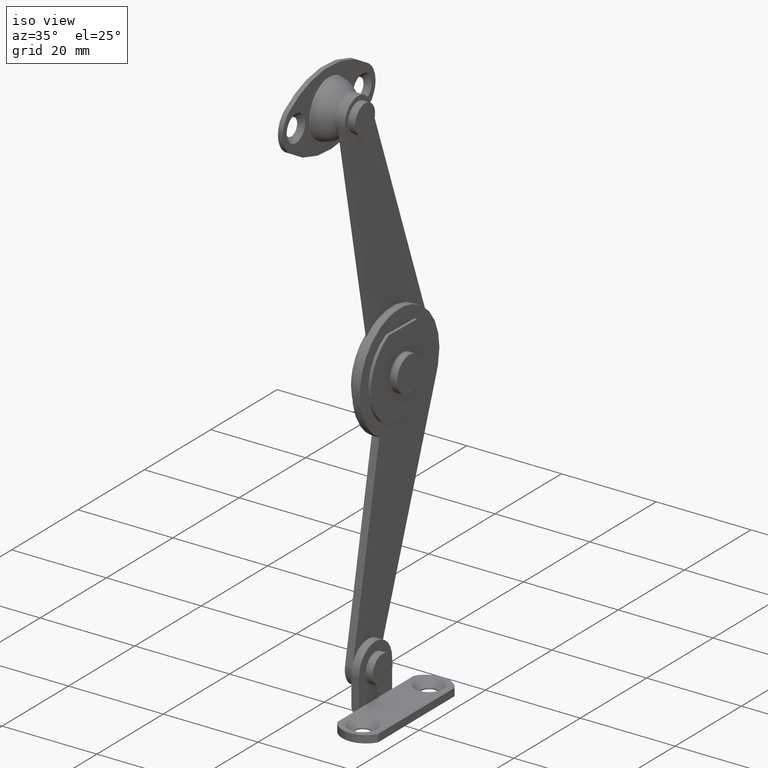
[diagram: clean part render]
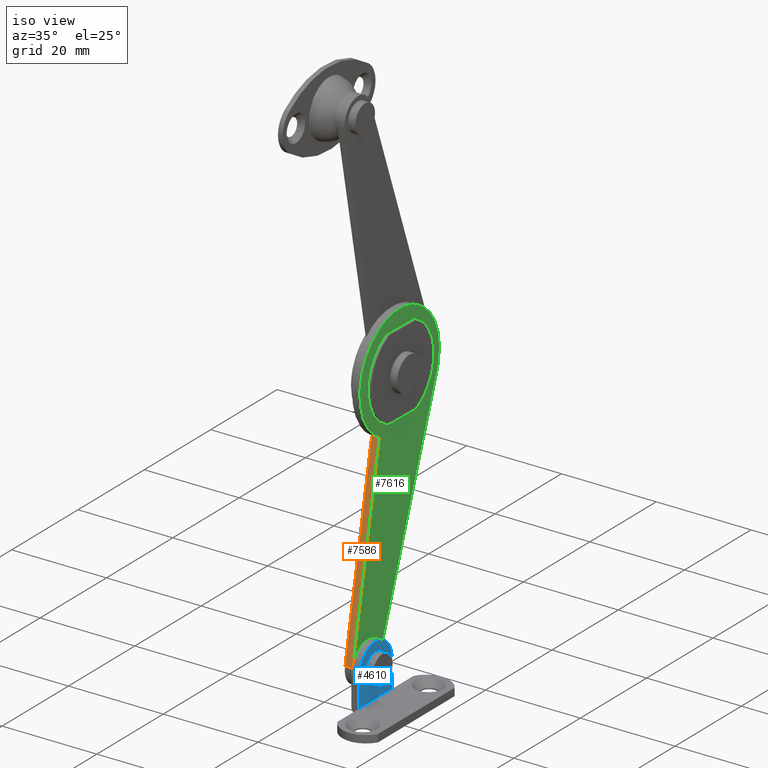
[diagram: same view with three faces highlighted in distinct colors, each labeled with its STEP entity id]
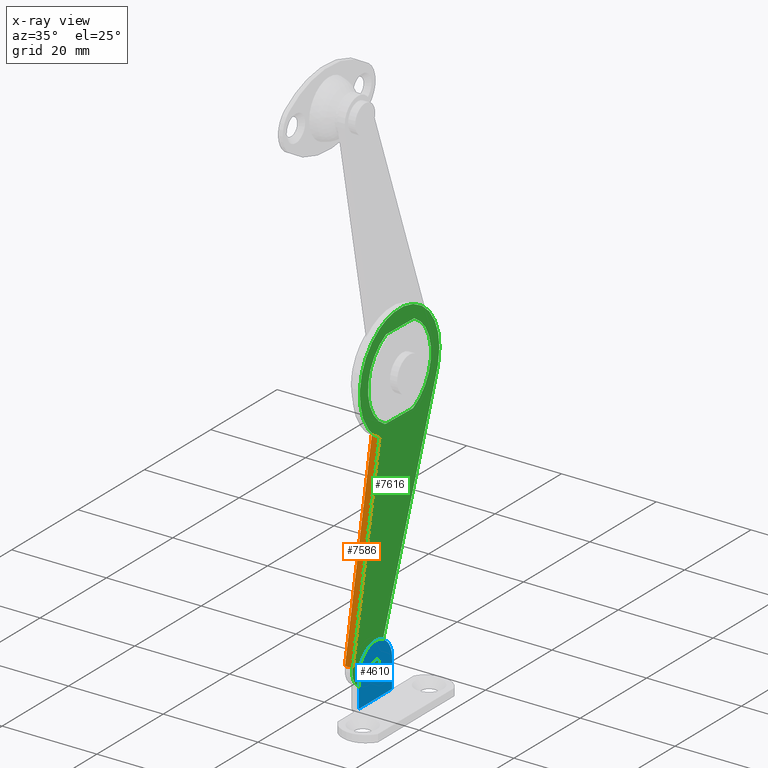
[diagram: x-ray of the same camera — body ghosted, the three highlighted faces saturated]
A machine part, iso view with three faces highlighted in distinct colors.
The next image is the same camera in x-ray (body ghosted, the three faces saturated) — at least one of them is partly hidden behind the body in this view.
Their STEP definitions:

[orange] entity #7586 — the highlighted face is a freeform B-spline surface patch.
#6938=CARTESIAN_POINT('',(7.099998474121129,-3.924537018917785,-51.226640025646198));
#6939=VERTEX_POINT('',#6938);
#6952=CARTESIAN_POINT('',(7.099998474121129,4.135061934568050,-10.326884327893060));
#6953=VERTEX_POINT('',#6952);
#6954=CARTESIAN_POINT('',(7.099998474121129,4.135061934568050,-10.326884327893060));
#6955=CARTESIAN_POINT('',(7.099998474121129,-3.924537018917785,-51.226640025646198));
#6956=QUASI_UNIFORM_CURVE('',1,(#6954,#6955),.UNSPECIFIED.,.F.,.U.);
#6957=EDGE_CURVE('',#6953,#6939,#6956,.T.);
#7379=CARTESIAN_POINT('',(8.699998474121170,4.135061934568050,-10.326884327893060));
#7380=VERTEX_POINT('',#7379);
#7428=CARTESIAN_POINT('',(7.099998474121129,4.135061934568050,-10.326884327893060));
#7429=CARTESIAN_POINT('',(8.699998474121170,4.135061934568050,-10.326884327893060));
#7430=QUASI_UNIFORM_CURVE('',1,(#7428,#7429),.UNSPECIFIED.,.F.,.U.);
#7431=EDGE_CURVE('',#6953,#7380,#7430,.T.);
#7546=CARTESIAN_POINT('',(8.699998474121170,-3.924537018917785,-51.226640025646198));
#7547=VERTEX_POINT('',#7546);
#7560=CARTESIAN_POINT('',(7.099998474121129,-3.924537018917785,-51.226640025646198));
#7561=CARTESIAN_POINT('',(8.699998474121170,-3.924537018917785,-51.226640025646198));
#7562=QUASI_UNIFORM_CURVE('',1,(#7560,#7561),.UNSPECIFIED.,.F.,.U.);
#7563=EDGE_CURVE('',#6939,#7547,#7562,.T.);
#7571=CARTESIAN_POINT('',(7.020078460073266,4.537643469414697,-8.283942664922277));
#7572=CARTESIAN_POINT('',(7.020078460073266,-4.327113801324200,-53.269580725761138));
#7573=CARTESIAN_POINT('',(8.779918874407130,4.537643469414697,-8.283942664922277));
#7574=CARTESIAN_POINT('',(8.779918874407130,-4.327113801324200,-53.269580725761138));
#7575=B_SPLINE_SURFACE_WITH_KNOTS('',1,1,((#7571,#7573),(#7572,#7574)),.UNSPECIFIED.,.F.,.F.,.U.,(2,2),(2,2),(0.0,45.850753027730228),(0.041708326016739,0.958291875148937),.UNSPECIFIED.);
#7576=CARTESIAN_POINT('',(8.699998474121170,4.135061934568050,-10.326884327893060));
#7577=CARTESIAN_POINT('',(8.699998474121170,-3.924537018917785,-51.226640025646198));
#7578=QUASI_UNIFORM_CURVE('',1,(#7576,#7577),.UNSPECIFIED.,.F.,.U.);
#7579=EDGE_CURVE('',#7380,#7547,#7578,.T.);
#7580=ORIENTED_EDGE('',*,*,#7579,.F.);
#7581=ORIENTED_EDGE('',*,*,#7431,.F.);
#7582=ORIENTED_EDGE('',*,*,#6957,.T.);
#7583=ORIENTED_EDGE('',*,*,#7563,.T.);
#7584=EDGE_LOOP('',(#7580,#7581,#7582,#7583));
#7585=FACE_OUTER_BOUND('',#7584,.T.);
#7586=ADVANCED_FACE('',(#7585),#7575,.T.);

[blue] entity #4610 — the highlighted face is a freeform B-spline surface patch.
#4252=CARTESIAN_POINT('',(10.799996948242059,1.145334037168641,-51.031386458042547));
#4253=VERTEX_POINT('',#4252);
#4254=CARTESIAN_POINT('',(10.799996948242059,0.0,-50.499999999999993));
#4255=VERTEX_POINT('',#4254);
#4256=CARTESIAN_POINT('',(10.799996948242059,1.145334037168641,-51.031386458042547));
#4257=CARTESIAN_POINT('',(10.799996948242050,0.996589544052949,-50.854848840238262));
#4258=CARTESIAN_POINT('',(10.799996948242100,0.637850671432276,-50.589882888419233));
#4259=CARTESIAN_POINT('',(10.799996948242040,0.203662447220135,-50.499780386083259));
#4260=CARTESIAN_POINT('',(10.799996948242059,0.0,-50.499999999999993));
#4261=B_SPLINE_CURVE_WITH_KNOTS('',3,(#4256,#4257,#4258,#4259,#4260),.UNSPECIFIED.,.F.,.U.,(4,1,4),(0.000000083456976,0.692330028737207,1.303242774409593),.UNSPECIFIED.);
#4262=EDGE_CURVE('',#4253,#4255,#4261,.T.);
#4264=CARTESIAN_POINT('',(10.799996948242059,-1.499999999996914,-52.000003042715463));
#4265=VERTEX_POINT('',#4264);
#4266=CARTESIAN_POINT('',(10.799996948242059,0.0,-50.499999999999993));
#4267=CARTESIAN_POINT('',(10.799996948242070,-0.196380286876731,-50.499791180720322));
#4268=CARTESIAN_POINT('',(10.799996948242020,-0.527571323811754,-50.566025826788632));
#4269=CARTESIAN_POINT('',(10.799996948242100,-0.902023574211386,-50.784341648759522));
#4270=CARTESIAN_POINT('',(10.799996948242050,-1.152071437962525,-51.022435920222627));
#4271=CARTESIAN_POINT('',(10.799996948242111,-1.347682324044975,-51.307483534780282));
#4272=CARTESIAN_POINT('',(10.799996948241949,-1.472803049476377,-51.644115988787483));
#4273=CARTESIAN_POINT('',(10.799996948242191,-1.500010466685041,-51.889558457076447));
#4274=CARTESIAN_POINT('',(10.799996948242059,-1.499999999996914,-52.000003042715463));
#4275=B_SPLINE_CURVE_WITH_KNOTS('',3,(#4266,#4267,#4268,#4269,#4270,#4271,#4272,#4273,#4274),.UNSPECIFIED.,.F.,.U.,(4,1,1,1,1,1,4),(0.000000283863455,0.589064045423519,0.994076413415713,1.288576005405115,1.619920505931810,2.024911528523917,2.356255331524166),.UNSPECIFIED.);
#4276=EDGE_CURVE('',#4255,#4265,#4275,.T.);
#4278=CARTESIAN_POINT('',(10.799996948242059,0.0,-53.500000000000000));
#4279=VERTEX_POINT('',#4278);
#4280=CARTESIAN_POINT('',(10.799996948242059,-1.499999999996914,-52.000003042715463));
#4281=CARTESIAN_POINT('',(10.799996948242070,-1.500323367827240,-52.220975772816793));
#4282=CARTESIAN_POINT('',(10.799996948242070,-1.425427246016090,-52.551969683693947));
#4283=CARTESIAN_POINT('',(10.799996948242059,-1.159827499217720,-52.983018830618171));
#4284=CARTESIAN_POINT('',(10.799996948242059,-0.864581322005316,-53.250618409512057));
#4285=CARTESIAN_POINT('',(10.799996948242070,-0.453979911137221,-53.450945582483953));
#4286=CARTESIAN_POINT('',(10.799996948242050,-0.171820552981478,-53.500119168544643));
#4287=CARTESIAN_POINT('',(10.799996948242059,0.0,-53.500000000000000));
#4288=B_SPLINE_CURVE_WITH_KNOTS('',3,(#4280,#4281,#4282,#4283,#4284,#4285,#4286,#4287),.UNSPECIFIED.,.F.,.U.,(4,1,1,1,1,4),(0.000000288015872,0.662699799461395,0.994074968507984,1.509469415839213,1.840825604461240,2.356251901589147),.UNSPECIFIED.);
#4289=EDGE_CURVE('',#4265,#4279,#4288,.T.);
#4291=CARTESIAN_POINT('',(10.799996948202260,1.032531495383060,-53.088060858652867));
#4292=VERTEX_POINT('',#4291);
#4293=CARTESIAN_POINT('',(10.799996948242059,0.0,-53.500000000000000));
#4294=CARTESIAN_POINT('',(10.799996948235210,0.177963420539981,-53.500128342323301));
#4295=CARTESIAN_POINT('',(10.799996948220560,0.557458903448814,-53.431617821280270));
#4296=CARTESIAN_POINT('',(10.799996948207900,0.886392971133170,-53.227080538860633));
#4297=CARTESIAN_POINT('',(10.799996948202260,1.032531495383060,-53.088060858652867));
#4298=B_SPLINE_CURVE_WITH_KNOTS('',3,(#4293,#4294,#4295,#4296,#4297),.UNSPECIFIED.,.F.,.U.,(4,1,4),(0.000000055616620,0.533851521633469,1.138853966353496),.UNSPECIFIED.);
#4299=EDGE_CURVE('',#4279,#4292,#4298,.T.);
#4378=CARTESIAN_POINT('',(10.799996948242059,1.499999999996914,-51.999996957284530));
#4379=VERTEX_POINT('',#4378);
#4380=CARTESIAN_POINT('',(10.799996948242059,1.499999999996914,-51.999996957284530));
#4381=CARTESIAN_POINT('',(10.799996948242040,1.500366738086189,-51.780549520734972));
#4382=CARTESIAN_POINT('',(10.799996948242130,1.421510973789102,-51.429902000169562));
#4383=CARTESIAN_POINT('',(10.799996948242010,1.230355103172428,-51.131869724610823));
#4384=CARTESIAN_POINT('',(10.799996948242059,1.145334037168641,-51.031386458042547));
#4385=B_SPLINE_CURVE_WITH_KNOTS('',3,(#4380,#4381,#4382,#4383,#4384),.UNSPECIFIED.,.F.,.U.,(4,1,4),(0.000000047974926,0.658121318862436,1.053010386949288),.UNSPECIFIED.);
#4386=EDGE_CURVE('',#4379,#4253,#4385,.T.);
#4408=CARTESIAN_POINT('',(10.799996948202260,1.032531495383060,-53.088060858652867));
#4409=CARTESIAN_POINT('',(10.799996948205450,1.124526582921651,-53.000786120908032));
#4410=CARTESIAN_POINT('',(10.799996948213421,1.302434063851296,-52.782953637333733));
#4411=CARTESIAN_POINT('',(10.799996948227230,1.464454135517135,-52.405792715636359));
#4412=CARTESIAN_POINT('',(10.799996948237419,1.500023942222396,-52.126805365739543));
#4413=CARTESIAN_POINT('',(10.799996948242059,1.499999999996914,-51.999996957284530));
#4414=B_SPLINE_CURVE_WITH_KNOTS('',3,(#4408,#4409,#4410,#4411,#4412,#4413),.UNSPECIFIED.,.F.,.U.,(4,1,1,4),(0.000000077546571,0.380440702215122,0.836961668112447,1.217402292905619),.UNSPECIFIED.);
#4415=EDGE_CURVE('',#4292,#4379,#4414,.T.);
#4495=CARTESIAN_POINT('',(10.799996948242040,-5.0,-52.000040808103897));
#4496=VERTEX_POINT('',#4495);
#4504=CARTESIAN_POINT('',(10.799996948242040,-0.000001656197851,-47.000040808104181));
#4505=VERTEX_POINT('',#4504);
#4506=CARTESIAN_POINT('',(10.799996948242040,-0.000001656197851,-47.000040808104181));
#4507=CARTESIAN_POINT('',(10.799996948242010,-0.490895495518395,-46.999838728316440));
#4508=CARTESIAN_POINT('',(10.799996948242111,-1.288426931313735,-47.118497407793043));
#4509=CARTESIAN_POINT('',(10.799996948242050,-2.468029452808279,-47.598558002419352));
#4510=CARTESIAN_POINT('',(10.799996948241979,-3.359214764928296,-48.234439688695304));
#4511=CARTESIAN_POINT('',(10.799996948242070,-4.115799324220795,-49.100879409418368));
#4512=CARTESIAN_POINT('',(10.799996948242150,-4.562077450679630,-49.888663109865568));
#4513=CARTESIAN_POINT('',(10.799996948241970,-4.908237985116697,-50.875208122821192));
#4514=CARTESIAN_POINT('',(10.799996948241990,-5.000145058548508,-51.550057007337642));
#4515=CARTESIAN_POINT('',(10.799996948242040,-5.0,-52.000040808103897));
#4516=B_SPLINE_CURVE_WITH_KNOTS('',3,(#4506,#4507,#4508,#4509,#4510,#4511,#4512,#4513,#4514,#4515),.UNSPECIFIED.,.F.,.U.,(4,1,1,1,1,1,1,4),(0.000000144984797,1.472619814537674,2.393036437964593,3.804329931421755,4.724687503644610,5.829162055215201,6.504134637313222,7.854029980919833),.UNSPECIFIED.);
#4517=EDGE_CURVE('',#4505,#4496,#4516,.T.);
#4519=CARTESIAN_POINT('',(10.799996948242040,5.0,-52.000040808103897));
#4520=VERTEX_POINT('',#4519);
#4521=CARTESIAN_POINT('',(10.799996948242040,5.0,-52.000040808103897));
#4522=CARTESIAN_POINT('',(10.799996948242050,5.000070209342307,-51.590985960817207));
#4523=CARTESIAN_POINT('',(10.799996948242010,4.889069234317315,-50.691015440821623));
#4524=CARTESIAN_POINT('',(10.799996948242081,4.461886168744005,-49.659543297017038));
#4525=CARTESIAN_POINT('',(10.799996948242001,3.858897029490554,-48.780941339081842));
#4526=CARTESIAN_POINT('',(10.799996948242050,3.255354443791980,-48.162346168220203));
#4527=CARTESIAN_POINT('',(10.799996948241910,2.527422282467358,-47.663019338960332));
#4528=CARTESIAN_POINT('',(10.799996948242679,1.714427738592677,-47.272284188713193));
#4529=CARTESIAN_POINT('',(10.799996948240780,0.879486995359320,-47.046747558373220));
#4530=CARTESIAN_POINT('',(10.799996948242701,0.245421635279265,-47.000042485496508));
#4531=CARTESIAN_POINT('',(10.799996948242040,-0.000001656197851,-47.000040808104181));
#4532=B_SPLINE_CURVE_WITH_KNOTS('',3,(#4521,#4522,#4523,#4524,#4525,#4526,#4527,#4528,#4529,#4530,#4531),.UNSPECIFIED.,.F.,.U.,(4,1,1,1,1,1,1,1,4),(0.000000144376044,1.227189754808234,2.699842161845424,3.313445550053572,4.417886665036427,5.276911675831657,5.951884418303266,7.117746645886157,7.854031847852583),.UNSPECIFIED.);
#4533=EDGE_CURVE('',#4520,#4505,#4532,.T.);
#4574=CARTESIAN_POINT('',(10.799996948242040,-5.499499980618060,-58.549447861715990));
#4575=CARTESIAN_POINT('',(10.799996948242040,-5.499499980618060,-46.450594224903092));
#4576=CARTESIAN_POINT('',(10.799996948242040,5.499500248838961,-58.549447861715990));
#4577=CARTESIAN_POINT('',(10.799996948242040,5.499500248838961,-46.450594224903092));
#4578=B_SPLINE_SURFACE_WITH_KNOTS('',1,1,((#4574,#4576),(#4575,#4577)),.UNSPECIFIED.,.F.,.F.,.U.,(2,2),(2,2),(0.0,12.098853636812899),(0.0,10.999000229457019),.UNSPECIFIED.);
#4579=CARTESIAN_POINT('',(10.799996948242040,5.0,-58.0));
#4580=VERTEX_POINT('',#4579);
#4581=CARTESIAN_POINT('',(10.799996948242040,5.0,-52.000040808103897));
#4582=CARTESIAN_POINT('',(10.799996948242040,5.0,-58.0));
#4583=QUASI_UNIFORM_CURVE('',1,(#4581,#4582),.UNSPECIFIED.,.F.,.U.);
#4584=EDGE_CURVE('',#4520,#4580,#4583,.T.);
#4585=ORIENTED_EDGE('',*,*,#4584,.F.);
#4586=ORIENTED_EDGE('',*,*,#4533,.T.);
#4587=ORIENTED_EDGE('',*,*,#4517,.T.);
#4588=CARTESIAN_POINT('',(10.799996948242040,-5.0,-58.0));
#4589=VERTEX_POINT('',#4588);
#4590=CARTESIAN_POINT('',(10.799996948242040,-5.0,-52.000040808103897));
#4591=CARTESIAN_POINT('',(10.799996948242040,-5.0,-58.0));
#4592=QUASI_UNIFORM_CURVE('',1,(#4590,#4591),.UNSPECIFIED.,.F.,.U.);
#4593=EDGE_CURVE('',#4496,#4589,#4592,.T.);
#4594=ORIENTED_EDGE('',*,*,#4593,.T.);
#4595=CARTESIAN_POINT('',(10.799996948242040,-5.0,-58.0));
#4596=CARTESIAN_POINT('',(10.799996948242040,5.0,-58.0));
#4597=QUASI_UNIFORM_CURVE('',1,(#4595,#4596),.UNSPECIFIED.,.F.,.U.);
#4598=EDGE_CURVE('',#4589,#4580,#4597,.T.);
#4599=ORIENTED_EDGE('',*,*,#4598,.T.);
#4600=EDGE_LOOP('',(#4585,#4586,#4587,#4594,#4599));
#4601=FACE_OUTER_BOUND('',#4600,.T.);
#4602=ORIENTED_EDGE('',*,*,#4276,.F.);
#4603=ORIENTED_EDGE('',*,*,#4262,.F.);
#4604=ORIENTED_EDGE('',*,*,#4386,.F.);
#4605=ORIENTED_EDGE('',*,*,#4415,.F.);
#4606=ORIENTED_EDGE('',*,*,#4299,.F.);
#4607=ORIENTED_EDGE('',*,*,#4289,.F.);
#4608=EDGE_LOOP('',(#4602,#4603,#4604,#4605,#4606,#4607));
#4609=FACE_BOUND('',#4608,.T.);
#4610=ADVANCED_FACE('',(#4601,#4609),#4578,.F.);

[green] entity #7616 — the highlighted face is a freeform B-spline surface patch.
#6547=CARTESIAN_POINT('',(8.699998474121170,1.145334037168641,-51.031386458042547));
#6548=VERTEX_POINT('',#6547);
#6549=CARTESIAN_POINT('',(8.699998474121170,0.0,-50.499999999999993));
#6550=VERTEX_POINT('',#6549);
#6551=CARTESIAN_POINT('',(8.699998474121170,1.145334037168641,-51.031386458042547));
#6552=CARTESIAN_POINT('',(8.699998474121161,0.996589544052949,-50.854848840238212));
#6553=CARTESIAN_POINT('',(8.699998474121198,0.637850671432276,-50.589882888419311));
#6554=CARTESIAN_POINT('',(8.699998474121147,0.203662447220135,-50.499780386083238));
#6555=CARTESIAN_POINT('',(8.699998474121170,0.0,-50.499999999999993));
#6556=B_SPLINE_CURVE_WITH_KNOTS('',3,(#6551,#6552,#6553,#6554,#6555),.UNSPECIFIED.,.F.,.U.,(4,1,4),(0.000000083456976,0.692330028737207,1.303242774409593),.UNSPECIFIED.);
#6557=EDGE_CURVE('',#6548,#6550,#6556,.T.);
#6559=CARTESIAN_POINT('',(8.699998474121170,-1.499999999996914,-52.000003042715463));
#6560=VERTEX_POINT('',#6559);
#6561=CARTESIAN_POINT('',(8.699998474121170,0.0,-50.499999999999993));
#6562=CARTESIAN_POINT('',(8.699998474121180,-0.196380286876731,-50.499791180720308));
#6563=CARTESIAN_POINT('',(8.699998474121138,-0.527571323811754,-50.566025826788660));
#6564=CARTESIAN_POINT('',(8.699998474121196,-0.902023574211386,-50.784341648759522));
#6565=CARTESIAN_POINT('',(8.699998474121157,-1.152071437962525,-51.022435920222620));
#6566=CARTESIAN_POINT('',(8.699998474121214,-1.347682324044975,-51.307483534780268));
#6567=CARTESIAN_POINT('',(8.699998474121067,-1.472803049476377,-51.644115988787483));
#6568=CARTESIAN_POINT('',(8.699998474121280,-1.500010466685042,-51.889558457076447));
#6569=CARTESIAN_POINT('',(8.699998474121170,-1.499999999996914,-52.000003042715463));
#6570=B_SPLINE_CURVE_WITH_KNOTS('',3,(#6561,#6562,#6563,#6564,#6565,#6566,#6567,#6568,#6569),.UNSPECIFIED.,.F.,.U.,(4,1,1,1,1,1,4),(0.000000283863455,0.589064045423519,0.994076413415713,1.288576005405115,1.619920505931810,2.024911528523917,2.356255331524166),.UNSPECIFIED.);
#6571=EDGE_CURVE('',#6550,#6560,#6570,.T.);
#6573=CARTESIAN_POINT('',(8.699998474121170,0.0,-53.500000000000000));
#6574=VERTEX_POINT('',#6573);
#6575=CARTESIAN_POINT('',(8.699998474121170,-1.499999999996914,-52.000003042715463));
#6576=CARTESIAN_POINT('',(8.699998474121166,-1.500345417388258,-52.220962805483488));
#6577=CARTESIAN_POINT('',(8.699998474121172,-1.419902369628683,-52.576535111210930));
#6578=CARTESIAN_POINT('',(8.699998474121172,-1.169941366616932,-52.960573045162583));
#6579=CARTESIAN_POINT('',(8.699998474121175,-0.919875408229973,-53.198635298828762));
#6580=CARTESIAN_POINT('',(8.699998474121166,-0.551996857046948,-53.425425195890227));
#6581=CARTESIAN_POINT('',(8.699998474121156,-0.220969133238336,-53.500358349185909));
#6582=CARTESIAN_POINT('',(8.699998474121170,0.0,-53.500000000000000));
#6583=B_SPLINE_CURVE_WITH_KNOTS('',3,(#6575,#6576,#6577,#6578,#6579,#6580,#6581,#6582),.UNSPECIFIED.,.F.,.U.,(4,1,1,1,1,4),(0.000000288015872,0.662699799461395,1.067678059348184,1.362177217291333,1.693552388405020,2.356251901589147),.UNSPECIFIED.);
#6584=EDGE_CURVE('',#6560,#6574,#6583,.T.);
#6586=CARTESIAN_POINT('',(8.699998474081369,1.032531495383062,-53.088060858652867));
#6587=VERTEX_POINT('',#6586);
#6588=CARTESIAN_POINT('',(8.699998474121170,0.0,-53.500000000000000));
#6589=CARTESIAN_POINT('',(8.699998474114322,0.177966905328297,-53.500145545029511));
#6590=CARTESIAN_POINT('',(8.699998474099669,0.557453161344970,-53.431592369605532));
#6591=CARTESIAN_POINT('',(8.699998474087007,0.886395017431086,-53.227089592053773));
#6592=CARTESIAN_POINT('',(8.699998474081369,1.032531495383062,-53.088060858652867));
#6593=B_SPLINE_CURVE_WITH_KNOTS('',3,(#6588,#6589,#6590,#6591,#6592),.UNSPECIFIED.,.F.,.U.,(4,1,4),(0.000000055617112,0.533851521633629,1.138853966353498),.UNSPECIFIED.);
#6594=EDGE_CURVE('',#6574,#6587,#6593,.T.);
#6672=CARTESIAN_POINT('',(8.699998474121170,1.499999999996914,-51.999996957284530));
#6673=VERTEX_POINT('',#6672);
#6674=CARTESIAN_POINT('',(8.699998474121170,1.499999999996914,-51.999996957284530));
#6675=CARTESIAN_POINT('',(8.699998474121141,1.500367375363764,-51.780549055394687));
#6676=CARTESIAN_POINT('',(8.699998474121234,1.421510663165229,-51.429902135902012));
#6677=CARTESIAN_POINT('',(8.699998474121131,1.230355124220441,-51.131869727586142));
#6678=CARTESIAN_POINT('',(8.699998474121170,1.145334037168641,-51.031386458042547));
#6679=B_SPLINE_CURVE_WITH_KNOTS('',3,(#6674,#6675,#6676,#6677,#6678),.UNSPECIFIED.,.F.,.U.,(4,1,4),(0.000000047974926,0.658121318862436,1.053010386949288),.UNSPECIFIED.);
#6680=EDGE_CURVE('',#6673,#6548,#6679,.T.);
#6702=CARTESIAN_POINT('',(8.699998474081369,1.032531495383062,-53.088060858652867));
#6703=CARTESIAN_POINT('',(8.699998474085527,1.152156017906616,-52.974636442227251));
#6704=CARTESIAN_POINT('',(8.699998474097509,1.399996504091683,-52.646293685486746));
#6705=CARTESIAN_POINT('',(8.699998474112370,1.500479063577341,-52.241041897383077));
#6706=CARTESIAN_POINT('',(8.699998474121170,1.499999999996914,-51.999996957284530));
#6707=B_SPLINE_CURVE_WITH_KNOTS('',3,(#6702,#6703,#6704,#6705,#6706),.UNSPECIFIED.,.F.,.U.,(4,1,4),(0.000000077545831,0.494573619071360,1.217402292905619),.UNSPECIFIED.);
#6708=EDGE_CURVE('',#6587,#6673,#6707,.T.);
#7226=CARTESIAN_POINT('',(8.699998474121149,5.834927892778881,-8.413314189848279));
#7227=VERTEX_POINT('',#7226);
#7228=CARTESIAN_POINT('',(8.699998474121170,14.318506927956500,-8.583275226252480));
#7229=VERTEX_POINT('',#7228);
#7230=CARTESIAN_POINT('',(8.699998474121149,5.834927892778881,-8.413314189848279));
#7231=CARTESIAN_POINT('',(8.699998474121170,14.318506927956500,-8.583275226252480));
#7232=QUASI_UNIFORM_CURVE('',1,(#7230,#7231),.UNSPECIFIED.,.F.,.U.);
#7233=EDGE_CURVE('',#7227,#7229,#7232,.T.);
#7263=CARTESIAN_POINT('',(8.699998474121170,6.175439596685810,8.583275226252310));
#7264=VERTEX_POINT('',#7263);
#7265=CARTESIAN_POINT('',(8.699998474121170,6.175439596685810,8.583275226252310));
#7266=CARTESIAN_POINT('',(8.699998474121170,5.531560619294025,8.277975935286444));
#7267=CARTESIAN_POINT('',(8.699998474121184,4.430215771471202,7.594251525304892));
#7268=CARTESIAN_POINT('',(8.699998474121189,3.032278734092164,6.268701722463088));
#7269=CARTESIAN_POINT('',(8.699998474121101,2.102061352442745,4.969930737903612));
#7270=CARTESIAN_POINT('',(8.699998474121291,1.380766995525323,3.519315282895815));
#7271=CARTESIAN_POINT('',(8.699998474121081,0.908495011311367,2.022715423371065));
#7272=CARTESIAN_POINT('',(8.699998474121328,0.734589105277985,0.574546149776151));
#7273=CARTESIAN_POINT('',(8.699998474120674,0.754989858959580,-0.824382291350876));
#7274=CARTESIAN_POINT('',(8.699998474121470,0.941056424087880,-2.103878712093650));
#7275=CARTESIAN_POINT('',(8.699998474121067,1.394287150502274,-3.545850249412931));
#7276=CARTESIAN_POINT('',(8.699998474121184,2.023797363278141,-4.829325662500954));
#7277=CARTESIAN_POINT('',(8.699998474121145,2.917885781530478,-6.115588747516815));
#7278=CARTESIAN_POINT('',(8.699998474121172,4.152362456281835,-7.372925098132955));
#7279=CARTESIAN_POINT('',(8.699998474121147,5.228074052153456,-8.095187507834865));
#7280=CARTESIAN_POINT('',(8.699998474121149,5.834927892778881,-8.413314189848279));
#7281=B_SPLINE_CURVE_WITH_KNOTS('',3,(#7265,#7266,#7267,#7268,#7269,#7270,#7271,#7272,#7273,#7274,#7275,#7276,#7277,#7278,#7279,#7280),.UNSPECIFIED.,.F.,.U.,(4,1,1,1,1,1,1,1,1,1,1,1,1,4),(0.000000190321309,2.137767459562831,3.864457784989472,5.755609239872701,6.906741609917599,8.715669792217657,10.442367437082680,11.264475729011620,12.908955346060459,14.306768029122980,15.786793334632440,17.184600672439370,18.993524037877151,21.049056074943390),.UNSPECIFIED.);
#7282=EDGE_CURVE('',#7264,#7227,#7281,.T.);
#7299=CARTESIAN_POINT('',(8.699998474121170,14.659018631863320,8.413314189848109));
#7300=VERTEX_POINT('',#7299);
#7301=CARTESIAN_POINT('',(8.699998474121170,14.659018631863320,8.413314189848109));
#7302=CARTESIAN_POINT('',(8.699998474121170,6.175439596685810,8.583275226252310));
#7303=QUASI_UNIFORM_CURVE('',1,(#7301,#7302),.UNSPECIFIED.,.F.,.U.);
#7304=EDGE_CURVE('',#7300,#7264,#7303,.T.);
#7330=CARTESIAN_POINT('',(8.699998474121170,14.318506927956500,-8.583275226252480));
#7331=CARTESIAN_POINT('',(8.699998474121184,14.962396927045701,-8.277993357198943));
#7332=CARTESIAN_POINT('',(8.699998474121131,16.063719350318689,-7.594233965043354));
#7333=CARTESIAN_POINT('',(8.699998474121252,17.461660636161980,-6.268705595344970));
#7334=CARTESIAN_POINT('',(8.699998474121017,18.504202593535670,-4.813199586334624));
#7335=CARTESIAN_POINT('',(8.699998474121362,19.182717303499739,-3.338008488397780));
#7336=CARTESIAN_POINT('',(8.699998474121047,19.578465565063748,-1.937166225448985));
#7337=CARTESIAN_POINT('',(8.699998474120822,19.788531272631520,-0.412599835905136));
#7338=CARTESIAN_POINT('',(8.699998474121149,19.723740920673290,1.184270072045139));
#7339=CARTESIAN_POINT('',(8.699998474121241,19.367096711460849,2.794157085438053));
#7340=CARTESIAN_POINT('',(8.699998474121140,18.875066302270501,4.048642140067011));
#7341=CARTESIAN_POINT('',(8.699998474121164,18.215768273278091,5.221099051076681));
#7342=CARTESIAN_POINT('',(8.699998474121170,17.508069570780030,6.167480167851497));
#7343=CARTESIAN_POINT('',(8.699998474121170,16.359279466671751,7.347788921040509));
#7344=CARTESIAN_POINT('',(8.699998474121170,15.387337745948750,8.031680144899866));
#7345=CARTESIAN_POINT('',(8.699998474121170,14.659018631863320,8.413314189848109));
#7346=B_SPLINE_CURVE_WITH_KNOTS('',3,(#7330,#7331,#7332,#7333,#7334,#7335,#7336,#7337,#7338,#7339,#7340,#7341,#7342,#7343,#7344,#7345),.UNSPECIFIED.,.F.,.U.,(4,1,1,1,1,1,1,1,1,1,1,1,1,4),(0.000000190315710,2.137767459558738,3.864457784986474,5.755609239870587,7.482303315744904,8.715669792216128,10.113435763787971,12.086713520351349,13.484520659692061,15.046777804937321,16.115685107139750,17.513478011063491,18.582404859797450,21.049056074943429),.UNSPECIFIED.);
#7347=EDGE_CURVE('',#7229,#7300,#7346,.T.);
#7377=CARTESIAN_POINT('',(8.699998474121170,4.303189660753997,10.424559295132889));
#7378=VERTEX_POINT('',#7377);
#7379=CARTESIAN_POINT('',(8.699998474121170,4.135061934568050,-10.326884327893060));
#7380=VERTEX_POINT('',#7379);
#7381=CARTESIAN_POINT('',(8.699998474121170,4.303189660753997,10.424559295132889));
#7382=CARTESIAN_POINT('',(8.699998474121166,3.565865487268096,10.004335318750829));
#7383=CARTESIAN_POINT('',(8.699998474121184,2.527335323941775,9.255875302255124));
#7384=CARTESIAN_POINT('',(8.699998474121170,1.091451641554019,7.825753035465912));
#7385=CARTESIAN_POINT('',(8.699998474121166,0.033450880363994,6.406322660177475));
#7386=CARTESIAN_POINT('',(8.699998474121184,-0.786887824799418,4.804009837921641));
#7387=CARTESIAN_POINT('',(8.699998474121188,-1.358136103916314,3.202773239441154));
#7388=CARTESIAN_POINT('',(8.699998474121124,-1.696420059940117,1.567185340493262));
#7389=CARTESIAN_POINT('',(8.699998474121111,-1.796921491003265,-0.327853916605490));
#7390=CARTESIAN_POINT('',(8.699998474121212,-1.616688642902115,-2.087704349196032));
#7391=CARTESIAN_POINT('',(8.699998474121115,-1.174487141424781,-3.797815113961693));
#7392=CARTESIAN_POINT('',(8.699998474121339,-0.593148516637191,-5.221504330195196));
#7393=CARTESIAN_POINT('',(8.699998474120928,0.210771205686652,-6.644868726580985));
#7394=CARTESIAN_POINT('',(8.699998474121230,1.120722950674718,-7.844854004013509));
#7395=CARTESIAN_POINT('',(8.699998474121550,2.430167500079492,-9.170240480776821));
#7396=CARTESIAN_POINT('',(8.699998474120523,3.432757019314513,-9.911363239062483));
#7397=CARTESIAN_POINT('',(8.699998474121170,4.135061934568050,-10.326884327893060));
#7398=B_SPLINE_CURVE_WITH_KNOTS('',3,(#7381,#7382,#7383,#7384,#7385,#7386,#7387,#7388,#7389,#7390,#7391,#7392,#7393,#7394,#7395,#7396,#7397),.UNSPECIFIED.,.F.,.U.,(4,1,1,1,1,1,1,1,1,1,1,1,1,1,4),(0.000000158368877,2.545960262674118,3.818946891113377,6.071155131868565,7.833749863454475,9.204687228428226,11.163097967254220,12.827747074886259,14.884098252128130,16.450868625689811,18.115535052842748,19.486449778480960,21.346982087850950,22.619959434753429,25.067992314057442),.UNSPECIFIED.);
#7399=EDGE_CURVE('',#7378,#7380,#7398,.T.);
#7401=CARTESIAN_POINT('',(8.699998474121170,22.246973262321148,6.274254E-016));
#7402=VERTEX_POINT('',#7401);
#7403=CARTESIAN_POINT('',(8.699998474121170,22.246973262321148,6.274254E-016));
#7404=CARTESIAN_POINT('',(8.699998474121202,22.247099692470911,0.848655826574612));
#7405=CARTESIAN_POINT('',(8.699998474121134,22.083558717294569,2.382720442452441));
#7406=CARTESIAN_POINT('',(8.699998474121193,21.497055084211269,4.293097552103388));
#7407=CARTESIAN_POINT('',(8.699998474121164,20.674344511559461,6.037807133788675));
#7408=CARTESIAN_POINT('',(8.699998474121193,19.588678895098901,7.639585943442801));
#7409=CARTESIAN_POINT('',(8.699998474121166,18.207190282702559,9.037908112743551));
#7410=CARTESIAN_POINT('',(8.699998474121243,16.795645824789180,10.098997674373161));
#7411=CARTESIAN_POINT('',(8.699998474121070,15.167535119628310,11.009768907896960));
#7412=CARTESIAN_POINT('',(8.699998474121475,13.311460463564231,11.663403641818681));
#7413=CARTESIAN_POINT('',(8.699998474120720,11.116937778488960,12.033940364844719));
#7414=CARTESIAN_POINT('',(8.699998474121168,9.147644609199514,12.009792674291480));
#7415=CARTESIAN_POINT('',(8.699998474120900,6.735575805205959,11.561772508553730));
#7416=CARTESIAN_POINT('',(8.699998474122001,5.238775043391010,10.958427648917320));
#7417=CARTESIAN_POINT('',(8.699998474121170,4.303189660753997,10.424559295132889));
#7418=B_SPLINE_CURVE_WITH_KNOTS('',3,(#7403,#7404,#7405,#7406,#7407,#7408,#7409,#7410,#7411,#7412,#7413,#7414,#7415,#7416,#7417),.UNSPECIFIED.,.F.,.U.,(4,1,1,1,1,1,1,1,1,1,1,1,4),(0.000000158335677,2.545960881594780,4.602324428054445,5.973231845012371,8.323364384507389,10.379720163863540,11.848605297387859,13.611134554592320,15.961256755355359,17.723858037294359,20.269829850517990,21.836589831675528,25.067998408642008),.UNSPECIFIED.);
#7419=EDGE_CURVE('',#7402,#7378,#7418,.T.);
#7441=CARTESIAN_POINT('',(8.699998474121170,21.820226994428399,-3.171718469893720));
#7442=VERTEX_POINT('',#7441);
#7443=CARTESIAN_POINT('',(8.699998474121170,21.820226994428399,-3.171718469893720));
#7444=CARTESIAN_POINT('',(8.699998474121170,22.246973262321148,6.274254E-016));
#7445=QUASI_UNIFORM_CURVE('',1,(#7443,#7444),.UNSPECIFIED.,.F.,.U.);
#7446=EDGE_CURVE('',#7442,#7402,#7445,.T.);
#7472=CARTESIAN_POINT('',(8.699998474121170,21.535469714833550,-4.070631911635386));
#7473=VERTEX_POINT('',#7472);
#7474=CARTESIAN_POINT('',(8.699998474121170,21.535469714833550,-4.070631911635386));
#7475=CARTESIAN_POINT('',(8.699998474121164,21.642116364647531,-3.774879252565015));
#7476=CARTESIAN_POINT('',(8.699998474121179,21.737134300461349,-3.474932916207983));
#7477=CARTESIAN_POINT('',(8.699998474121170,21.820226994428399,-3.171718469893720));
#7478=B_SPLINE_CURVE_WITH_KNOTS('',3,(#7474,#7475,#7476,#7477),.UNSPECIFIED.,.F.,.U.,(4,4),(2.864918E-010,0.943184559594797),.UNSPECIFIED.);
#7479=EDGE_CURVE('',#7473,#7442,#7478,.T.);
#7496=CARTESIAN_POINT('',(8.699998474121170,3.762834701924080,-53.356878760970297));
#7497=VERTEX_POINT('',#7496);
#7498=CARTESIAN_POINT('',(8.699998474121170,3.762834701924080,-53.356878760970297));
#7499=CARTESIAN_POINT('',(8.699998474121170,21.535469714833550,-4.070631911635386));
#7500=QUASI_UNIFORM_CURVE('',1,(#7498,#7499),.UNSPECIFIED.,.F.,.U.);
#7501=EDGE_CURVE('',#7497,#7473,#7500,.T.);
#7531=CARTESIAN_POINT('',(8.699998474121170,-1.068183353761745,-55.854742561925242));
#7532=VERTEX_POINT('',#7531);
#7533=CARTESIAN_POINT('',(8.699998474121170,-1.068183353761745,-55.854742561925242));
#7534=CARTESIAN_POINT('',(8.699998474121193,-0.738034604303280,-55.946301967506251));
#7535=CARTESIAN_POINT('',(8.699998474121157,-0.022953511681573,-56.048371027487363));
#7536=CARTESIAN_POINT('',(8.699998474121182,0.944266504566823,-55.925089495323817));
#7537=CARTESIAN_POINT('',(8.699998474121156,1.734614828161752,-55.627097689152052));
#7538=CARTESIAN_POINT('',(8.699998474121188,2.339282878813914,-55.268257150598437));
#7539=CARTESIAN_POINT('',(8.699998474121156,2.934697173235860,-54.761793767748323));
#7540=CARTESIAN_POINT('',(8.699998474121182,3.432088794454409,-54.115025091050299));
#7541=CARTESIAN_POINT('',(8.699998474121156,3.678327805631700,-53.591274276245187));
#7542=CARTESIAN_POINT('',(8.699998474121170,3.762834701924080,-53.356878760970297));
#7543=B_SPLINE_CURVE_WITH_KNOTS('',3,(#7533,#7534,#7535,#7536,#7537,#7538,#7539,#7540,#7541,#7542),.UNSPECIFIED.,.F.,.U.,(4,1,1,1,1,1,1,4),(0.000000133099507,1.027831927468138,2.149149011461269,2.896661153503356,3.550711319856060,4.251535506574864,5.232682261772740,5.980184152299987),.UNSPECIFIED.);
#7544=EDGE_CURVE('',#7532,#7497,#7543,.T.);
#7546=CARTESIAN_POINT('',(8.699998474121170,-3.924537018917785,-51.226640025646198));
#7547=VERTEX_POINT('',#7546);
#7548=CARTESIAN_POINT('',(8.699998474121170,-3.924537018917785,-51.226640025646198));
#7549=CARTESIAN_POINT('',(8.699998474121170,-4.018269138763039,-51.700286536862507));
#7550=CARTESIAN_POINT('',(8.699998474121168,-4.028332024134652,-52.491651785657723));
#7551=CARTESIAN_POINT('',(8.699998474121184,-3.761119451775960,-53.425715336488601));
#7552=CARTESIAN_POINT('',(8.699998474121161,-3.435656746309128,-54.083300006747841));
#7553=CARTESIAN_POINT('',(8.699998474121188,-2.933907484034636,-54.782182235965983));
#7554=CARTESIAN_POINT('',(8.699998474121147,-2.135647878534138,-55.449751734248892));
#7555=CARTESIAN_POINT('',(8.699998474121228,-1.413390521135184,-55.759190405175751));
#7556=CARTESIAN_POINT('',(8.699998474121170,-1.068183353761745,-55.854742561925242));
#7557=B_SPLINE_CURVE_WITH_KNOTS('',3,(#7548,#7549,#7550,#7551,#7552,#7553,#7554,#7555,#7556),.UNSPECIFIED.,.F.,.U.,(4,1,1,1,1,1,4),(0.000000133113011,1.448326415200164,2.336034676488426,2.896662994883914,3.644154670100951,4.905627950233965,5.980187953796911),.UNSPECIFIED.);
#7558=EDGE_CURVE('',#7547,#7532,#7557,.T.);
#7576=CARTESIAN_POINT('',(8.699998474121170,4.135061934568050,-10.326884327893060));
#7577=CARTESIAN_POINT('',(8.699998474121170,-3.924537018917785,-51.226640025646198));
#7578=QUASI_UNIFORM_CURVE('',1,(#7576,#7577),.UNSPECIFIED.,.F.,.U.);
#7579=EDGE_CURVE('',#7380,#7547,#7578,.T.);
#7587=CARTESIAN_POINT('',(8.699998474121149,-5.310955157139413,15.390518577799240));
#7588=CARTESIAN_POINT('',(8.699998474121149,23.558006371324211,15.390518577799240));
#7589=CARTESIAN_POINT('',(8.699998474121149,-5.310955157139413,-59.395400749152287));
#7590=CARTESIAN_POINT('',(8.699998474121149,23.558006371324211,-59.395400749152287));
#7591=B_SPLINE_SURFACE_WITH_KNOTS('',1,1,((#7587,#7589),(#7588,#7590)),.UNSPECIFIED.,.F.,.F.,.U.,(2,2),(2,2),(0.0,28.868961528463618),(0.0,74.785919326951529),.UNSPECIFIED.);
#7592=ORIENTED_EDGE('',*,*,#7579,.T.);
#7593=ORIENTED_EDGE('',*,*,#7558,.T.);
#7594=ORIENTED_EDGE('',*,*,#7544,.T.);
#7595=ORIENTED_EDGE('',*,*,#7501,.T.);
#7596=ORIENTED_EDGE('',*,*,#7479,.T.);
#7597=ORIENTED_EDGE('',*,*,#7446,.T.);
#7598=ORIENTED_EDGE('',*,*,#7419,.T.);
#7599=ORIENTED_EDGE('',*,*,#7399,.T.);
#7600=EDGE_LOOP('',(#7592,#7593,#7594,#7595,#7596,#7597,#7598,#7599));
#7601=FACE_OUTER_BOUND('',#7600,.T.);
#7602=ORIENTED_EDGE('',*,*,#7304,.F.);
#7603=ORIENTED_EDGE('',*,*,#7347,.F.);
#7604=ORIENTED_EDGE('',*,*,#7233,.F.);
#7605=ORIENTED_EDGE('',*,*,#7282,.F.);
#7606=EDGE_LOOP('',(#7602,#7603,#7604,#7605));
#7607=FACE_BOUND('',#7606,.T.);
#7608=ORIENTED_EDGE('',*,*,#6571,.F.);
#7609=ORIENTED_EDGE('',*,*,#6557,.F.);
#7610=ORIENTED_EDGE('',*,*,#6680,.F.);
#7611=ORIENTED_EDGE('',*,*,#6708,.F.);
#7612=ORIENTED_EDGE('',*,*,#6594,.F.);
#7613=ORIENTED_EDGE('',*,*,#6584,.F.);
#7614=EDGE_LOOP('',(#7608,#7609,#7610,#7611,#7612,#7613));
#7615=FACE_BOUND('',#7614,.T.);
#7616=ADVANCED_FACE('',(#7601,#7607,#7615),#7591,.F.);